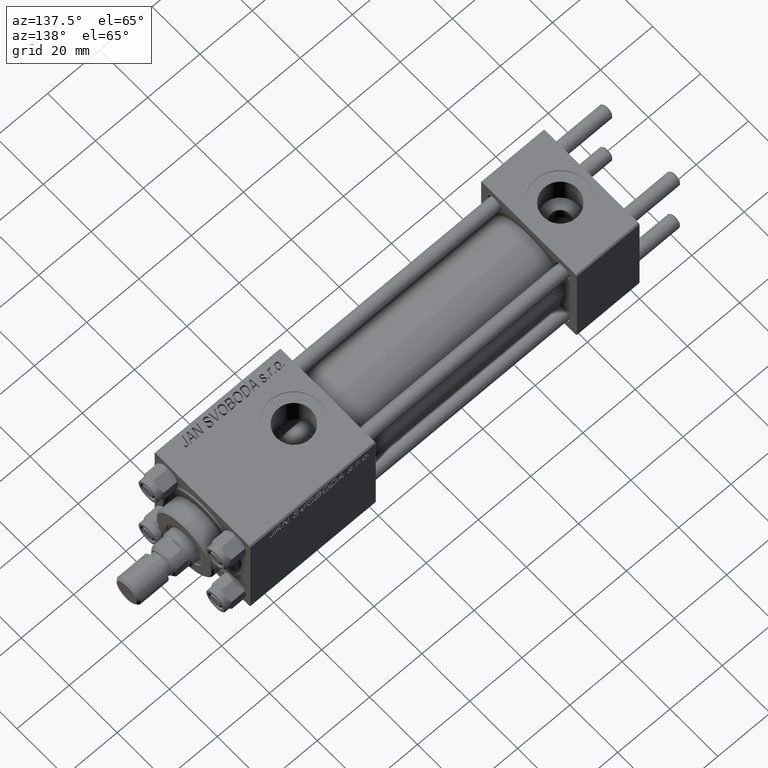
[diagram: clean part render]
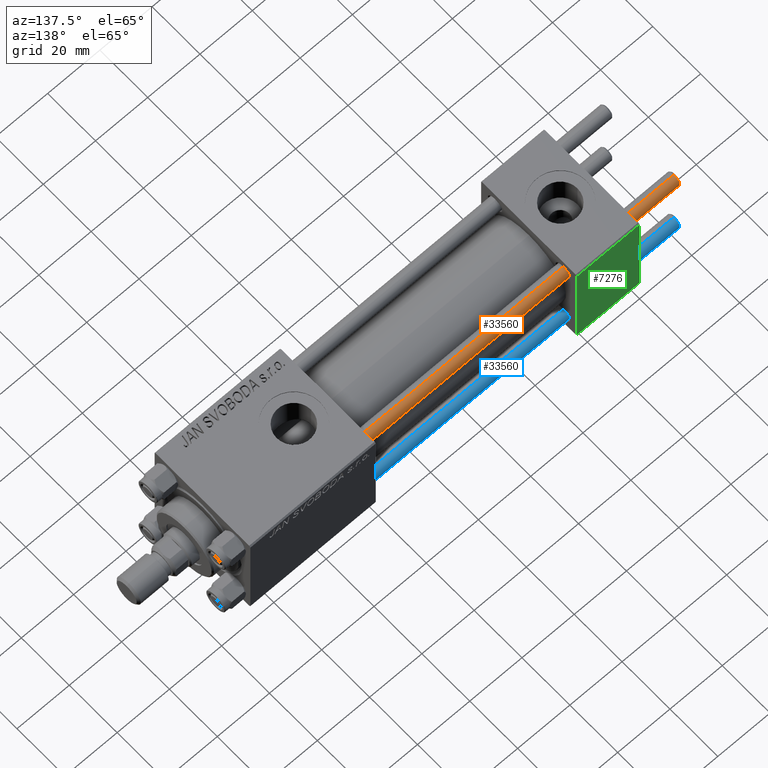
[diagram: same view with three faces highlighted in distinct colors, each labeled with its STEP entity id]
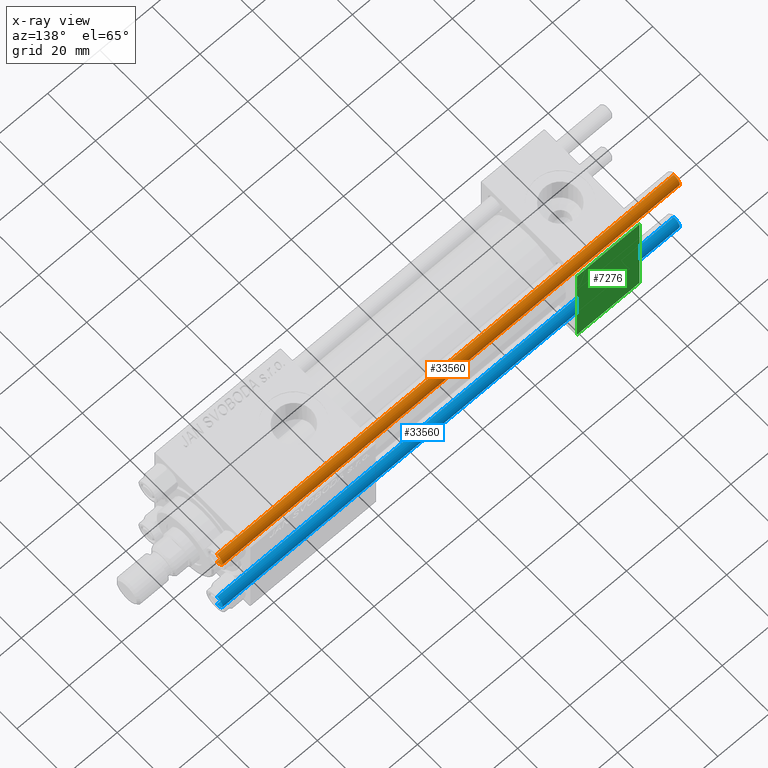
[diagram: x-ray of the same camera — body ghosted, the three highlighted faces saturated]
A machine part, auxiliary view with three faces highlighted in distinct colors.
The next image is the same camera in x-ray (body ghosted, the three faces saturated) — at least one of them is partly hidden behind the body in this view.
Their STEP definitions:

[orange] entity #33560 — the highlighted cylindrical surface (edge-blend (fillet) strip) has radius 2.5 mm, axis along (-1, -0, -0).
#1661 = VERTEX_POINT ( 'NONE', #5972 ) ;
#1925 = DIRECTION ( 'NONE',  ( -0.000000000000000000, -0.000000000000000000, -1.000000000000000000 ) ) ;
#3571 = ORIENTED_EDGE ( 'NONE', *, *, #43549, .F. ) ;
#3979 = CARTESIAN_POINT ( 'NONE',  ( -2.500000000000000000, 0.000000000000000000, 175.5000000000000000 ) ) ;
#5173 = CARTESIAN_POINT ( 'NONE',  ( 0.000000000000000000, 0.000000000000000000, 175.5000000000000000 ) ) ;
#5972 = CARTESIAN_POINT ( 'NONE',  ( 2.500000000000000000, 3.061616997868383141E-16, 175.5000000000000000 ) ) ;
#7217 = CYLINDRICAL_SURFACE ( 'NONE', #25030, 2.500000000000000000 ) ;
#8600 = ORIENTED_EDGE ( 'NONE', *, *, #42407, .T. ) ;
#12259 = CIRCLE ( 'NONE', #46821, 2.500000000000000000 ) ;
#14238 = VERTEX_POINT ( 'NONE', #49421 ) ;
#14336 = DIRECTION ( 'NONE',  ( -0.000000000000000000, -0.000000000000000000, -1.000000000000000000 ) ) ;
#17234 = EDGE_CURVE ( 'NONE', #1661, #20375, #18288, .T. ) ;
#18026 = DIRECTION ( 'NONE',  ( -1.000000000000000000, 0.000000000000000000, 0.000000000000000000 ) ) ;
#18269 = DIRECTION ( 'NONE',  ( 1.000000000000000000, 0.000000000000000000, 0.000000000000000000 ) ) ;
#18288 = LINE ( 'NONE', #29680, #30607 ) ;
#18500 = ORIENTED_EDGE ( 'NONE', *, *, #28892, .T. ) ;
#19534 = DIRECTION ( 'NONE',  ( -0.000000000000000000, -0.000000000000000000, 1.000000000000000000 ) ) ;
#20375 = VERTEX_POINT ( 'NONE', #30093 ) ;
#23234 = CARTESIAN_POINT ( 'NONE',  ( 0.000000000000000000, 0.000000000000000000, 0.5000000000000281997 ) ) ;
#24304 = CARTESIAN_POINT ( 'NONE',  ( -2.500000000000000000, 0.000000000000000000, 176.0000000000000000 ) ) ;
#25030 = AXIS2_PLACEMENT_3D ( 'NONE', #38102, #1925, #18026 ) ;
#28892 = EDGE_CURVE ( 'NONE', #20375, #14238, #12259, .T. ) ;
#29680 = CARTESIAN_POINT ( 'NONE',  ( 2.500000000000000000, 3.061616997868383141E-16, 176.0000000000000000 ) ) ;
#30093 = CARTESIAN_POINT ( 'NONE',  ( 2.500000000000000000, 3.061616997868383141E-16, 0.5000000000000281997 ) ) ;
#30607 = VECTOR ( 'NONE', #14336, 1000.000000000000000 ) ;
#31031 = VERTEX_POINT ( 'NONE', #3979 ) ;
#33171 = DIRECTION ( 'NONE',  ( 1.000000000000000000, 0.000000000000000000, 0.000000000000000000 ) ) ;
#33560 = ADVANCED_FACE ( 'NONE', ( #47362 ), #7217, .T. ) ;
#36703 = LINE ( 'NONE', #24304, #43819 ) ;
#37009 = CIRCLE ( 'NONE', #43783, 2.500000000000000000 ) ;
#37131 = DIRECTION ( 'NONE',  ( 0.000000000000000000, 0.000000000000000000, -1.000000000000000000 ) ) ;
#38102 = CARTESIAN_POINT ( 'NONE',  ( 0.000000000000000000, 0.000000000000000000, 176.0000000000000000 ) ) ;
#42407 = EDGE_CURVE ( 'NONE', #31031, #1661, #37009, .T. ) ;
#43549 = EDGE_CURVE ( 'NONE', #31031, #14238, #36703, .T. ) ;
#43783 = AXIS2_PLACEMENT_3D ( 'NONE', #5173, #37131, #33171 ) ;
#43819 = VECTOR ( 'NONE', #45407, 1000.000000000000000 ) ;
#45407 = DIRECTION ( 'NONE',  ( -0.000000000000000000, -0.000000000000000000, -1.000000000000000000 ) ) ;
#45497 = ORIENTED_EDGE ( 'NONE', *, *, #17234, .T. ) ;
#46821 = AXIS2_PLACEMENT_3D ( 'NONE', #23234, #19534, #18269 ) ;
#47362 = FACE_OUTER_BOUND ( 'NONE', #51674, .T. ) ;
#49421 = CARTESIAN_POINT ( 'NONE',  ( -2.500000000000000000, 0.000000000000000000, 0.5000000000000281997 ) ) ;
#51674 = EDGE_LOOP ( 'NONE', ( #8600, #45497, #18500, #3571 ) ) ;

[blue] entity #33560 — the highlighted cylindrical surface (edge-blend (fillet) strip) has radius 2.5 mm, axis along (1, 0, -0).
#1661 = VERTEX_POINT ( 'NONE', #5972 ) ;
#1925 = DIRECTION ( 'NONE',  ( -0.000000000000000000, -0.000000000000000000, -1.000000000000000000 ) ) ;
#3571 = ORIENTED_EDGE ( 'NONE', *, *, #43549, .F. ) ;
#3979 = CARTESIAN_POINT ( 'NONE',  ( -2.500000000000000000, 0.000000000000000000, 175.5000000000000000 ) ) ;
#5173 = CARTESIAN_POINT ( 'NONE',  ( 0.000000000000000000, 0.000000000000000000, 175.5000000000000000 ) ) ;
#5972 = CARTESIAN_POINT ( 'NONE',  ( 2.500000000000000000, 3.061616997868383141E-16, 175.5000000000000000 ) ) ;
#7217 = CYLINDRICAL_SURFACE ( 'NONE', #25030, 2.500000000000000000 ) ;
#8600 = ORIENTED_EDGE ( 'NONE', *, *, #42407, .T. ) ;
#12259 = CIRCLE ( 'NONE', #46821, 2.500000000000000000 ) ;
#14238 = VERTEX_POINT ( 'NONE', #49421 ) ;
#14336 = DIRECTION ( 'NONE',  ( -0.000000000000000000, -0.000000000000000000, -1.000000000000000000 ) ) ;
#17234 = EDGE_CURVE ( 'NONE', #1661, #20375, #18288, .T. ) ;
#18026 = DIRECTION ( 'NONE',  ( -1.000000000000000000, 0.000000000000000000, 0.000000000000000000 ) ) ;
#18269 = DIRECTION ( 'NONE',  ( 1.000000000000000000, 0.000000000000000000, 0.000000000000000000 ) ) ;
#18288 = LINE ( 'NONE', #29680, #30607 ) ;
#18500 = ORIENTED_EDGE ( 'NONE', *, *, #28892, .T. ) ;
#19534 = DIRECTION ( 'NONE',  ( -0.000000000000000000, -0.000000000000000000, 1.000000000000000000 ) ) ;
#20375 = VERTEX_POINT ( 'NONE', #30093 ) ;
#23234 = CARTESIAN_POINT ( 'NONE',  ( 0.000000000000000000, 0.000000000000000000, 0.5000000000000281997 ) ) ;
#24304 = CARTESIAN_POINT ( 'NONE',  ( -2.500000000000000000, 0.000000000000000000, 176.0000000000000000 ) ) ;
#25030 = AXIS2_PLACEMENT_3D ( 'NONE', #38102, #1925, #18026 ) ;
#28892 = EDGE_CURVE ( 'NONE', #20375, #14238, #12259, .T. ) ;
#29680 = CARTESIAN_POINT ( 'NONE',  ( 2.500000000000000000, 3.061616997868383141E-16, 176.0000000000000000 ) ) ;
#30093 = CARTESIAN_POINT ( 'NONE',  ( 2.500000000000000000, 3.061616997868383141E-16, 0.5000000000000281997 ) ) ;
#30607 = VECTOR ( 'NONE', #14336, 1000.000000000000000 ) ;
#31031 = VERTEX_POINT ( 'NONE', #3979 ) ;
#33171 = DIRECTION ( 'NONE',  ( 1.000000000000000000, 0.000000000000000000, 0.000000000000000000 ) ) ;
#33560 = ADVANCED_FACE ( 'NONE', ( #47362 ), #7217, .T. ) ;
#36703 = LINE ( 'NONE', #24304, #43819 ) ;
#37009 = CIRCLE ( 'NONE', #43783, 2.500000000000000000 ) ;
#37131 = DIRECTION ( 'NONE',  ( 0.000000000000000000, 0.000000000000000000, -1.000000000000000000 ) ) ;
#38102 = CARTESIAN_POINT ( 'NONE',  ( 0.000000000000000000, 0.000000000000000000, 176.0000000000000000 ) ) ;
#42407 = EDGE_CURVE ( 'NONE', #31031, #1661, #37009, .T. ) ;
#43549 = EDGE_CURVE ( 'NONE', #31031, #14238, #36703, .T. ) ;
#43783 = AXIS2_PLACEMENT_3D ( 'NONE', #5173, #37131, #33171 ) ;
#43819 = VECTOR ( 'NONE', #45407, 1000.000000000000000 ) ;
#45407 = DIRECTION ( 'NONE',  ( -0.000000000000000000, -0.000000000000000000, -1.000000000000000000 ) ) ;
#45497 = ORIENTED_EDGE ( 'NONE', *, *, #17234, .T. ) ;
#46821 = AXIS2_PLACEMENT_3D ( 'NONE', #23234, #19534, #18269 ) ;
#47362 = FACE_OUTER_BOUND ( 'NONE', #51674, .T. ) ;
#49421 = CARTESIAN_POINT ( 'NONE',  ( -2.500000000000000000, 0.000000000000000000, 0.5000000000000281997 ) ) ;
#51674 = EDGE_LOOP ( 'NONE', ( #8600, #45497, #18500, #3571 ) ) ;

[green] entity #7276 — the highlighted planar face has unit normal (0, 1, 0).
#3350 = CARTESIAN_POINT ( 'NONE',  ( 0.000000000000000000, 20.00000000000000000, 19.49999999999999289 ) ) ;
#7276 = ADVANCED_FACE ( 'NONE', ( #20360 ), #12433, .T. ) ;
#7339 = ORIENTED_EDGE ( 'NONE', *, *, #30507, .T. ) ;
#7948 = EDGE_LOOP ( 'NONE', ( #9661, #7339, #48594, #8937 ) ) ;
#8937 = ORIENTED_EDGE ( 'NONE', *, *, #33244, .T. ) ;
#9563 = CARTESIAN_POINT ( 'NONE',  ( 24.00000000000000000, 20.00000000000000000, 20.00000000000000000 ) ) ;
#9661 = ORIENTED_EDGE ( 'NONE', *, *, #27531, .T. ) ;
#11342 = VERTEX_POINT ( 'NONE', #18081 ) ;
#11819 = LINE ( 'NONE', #27150, #35994 ) ;
#12433 = PLANE ( 'NONE',  #51520 ) ;
#13405 = VERTEX_POINT ( 'NONE', #20233 ) ;
#13835 = CARTESIAN_POINT ( 'NONE',  ( 24.00000000000000000, 20.00000000000000000, -19.50000000000002132 ) ) ;
#15215 = EDGE_CURVE ( 'NONE', #40031, #11342, #30643, .T. ) ;
#17524 = DIRECTION ( 'NONE',  ( -1.000000000000000000, 0.000000000000000000, 0.000000000000000000 ) ) ;
#18081 = CARTESIAN_POINT ( 'NONE',  ( 0.000000000000000000, 20.00000000000000000, -19.50000000000002132 ) ) ;
#18883 = VERTEX_POINT ( 'NONE', #49457 ) ;
#19586 = CARTESIAN_POINT ( 'NONE',  ( 24.00000000000000000, 20.00000000000000000, 20.00000000000000000 ) ) ;
#19746 = DIRECTION ( 'NONE',  ( 1.000000000000000000, 0.000000000000000000, 0.000000000000000000 ) ) ;
#20233 = CARTESIAN_POINT ( 'NONE',  ( 24.00000000000000000, 20.00000000000000000, -19.50000000000002132 ) ) ;
#20360 = FACE_OUTER_BOUND ( 'NONE', #7948, .T. ) ;
#23287 = DIRECTION ( 'NONE',  ( -0.000000000000000000, 1.000000000000000000, 0.000000000000000000 ) ) ;
#27150 = CARTESIAN_POINT ( 'NONE',  ( 24.00000000000000000, 20.00000000000000000, 19.49999999999999289 ) ) ;
#27215 = DIRECTION ( 'NONE',  ( 0.000000000000000000, 0.000000000000000000, -1.000000000000000000 ) ) ;
#27531 = EDGE_CURVE ( 'NONE', #18883, #13405, #37807, .T. ) ;
#28886 = VECTOR ( 'NONE', #27215, 1000.000000000000000 ) ;
#30507 = EDGE_CURVE ( 'NONE', #13405, #11342, #50046, .T. ) ;
#30643 = LINE ( 'NONE', #51014, #28886 ) ;
#31488 = DIRECTION ( 'NONE',  ( 0.000000000000000000, -0.000000000000000000, 1.000000000000000000 ) ) ;
#32442 = VECTOR ( 'NONE', #41520, 1000.000000000000000 ) ;
#33244 = EDGE_CURVE ( 'NONE', #40031, #18883, #11819, .T. ) ;
#34188 = VECTOR ( 'NONE', #17524, 1000.000000000000000 ) ;
#35994 = VECTOR ( 'NONE', #19746, 1000.000000000000000 ) ;
#37807 = LINE ( 'NONE', #9563, #32442 ) ;
#40031 = VERTEX_POINT ( 'NONE', #3350 ) ;
#41520 = DIRECTION ( 'NONE',  ( 0.000000000000000000, 0.000000000000000000, -1.000000000000000000 ) ) ;
#48594 = ORIENTED_EDGE ( 'NONE', *, *, #15215, .F. ) ;
#49457 = CARTESIAN_POINT ( 'NONE',  ( 24.00000000000000000, 20.00000000000000000, 19.49999999999999289 ) ) ;
#50046 = LINE ( 'NONE', #13835, #34188 ) ;
#51014 = CARTESIAN_POINT ( 'NONE',  ( 0.000000000000000000, 20.00000000000000000, 20.00000000000000000 ) ) ;
#51520 = AXIS2_PLACEMENT_3D ( 'NONE', #19586, #23287, #31488 ) ;